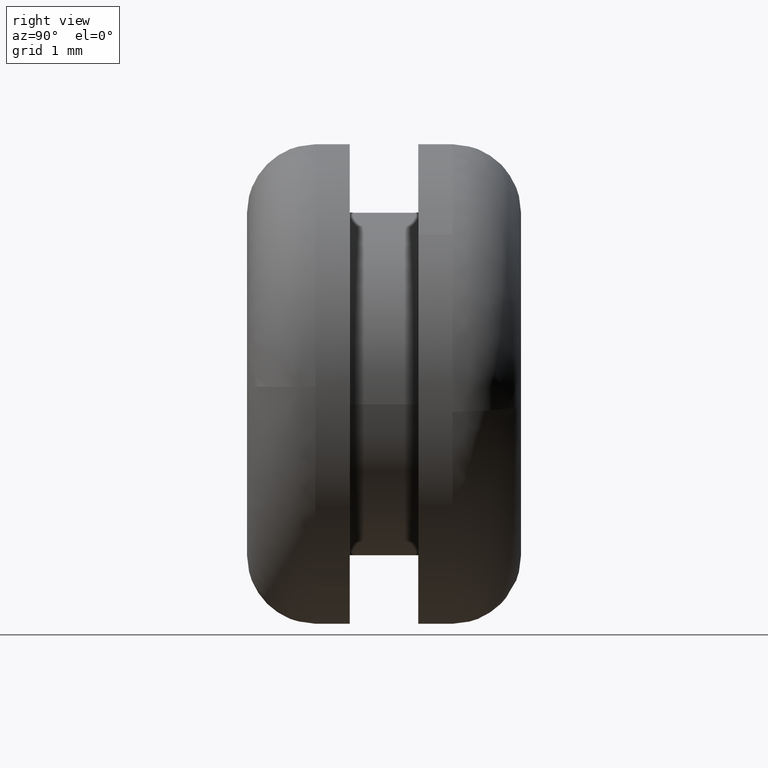
[diagram: clean part render]
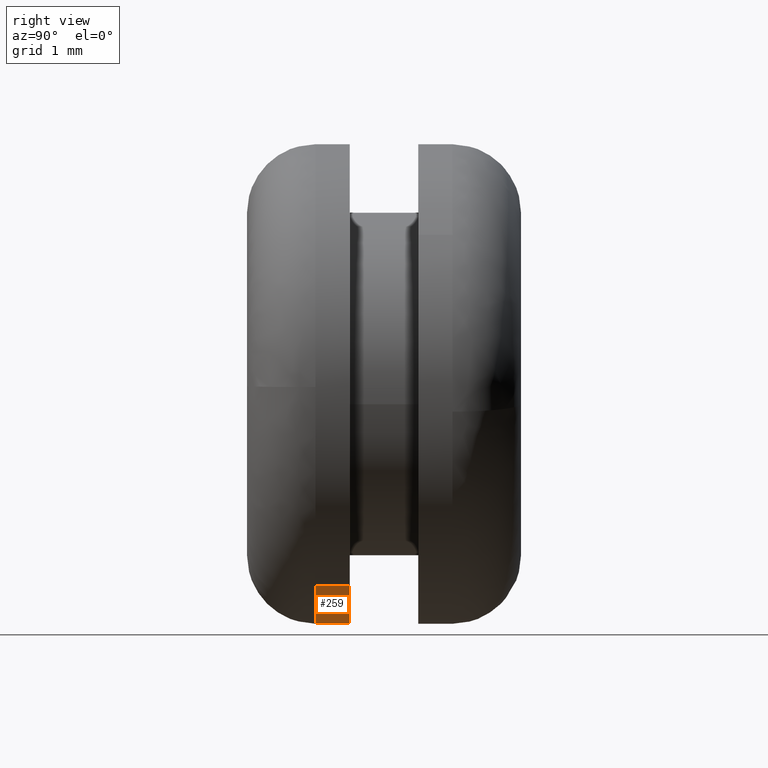
[diagram: same view with one face highlighted and labeled with its STEP entity id]
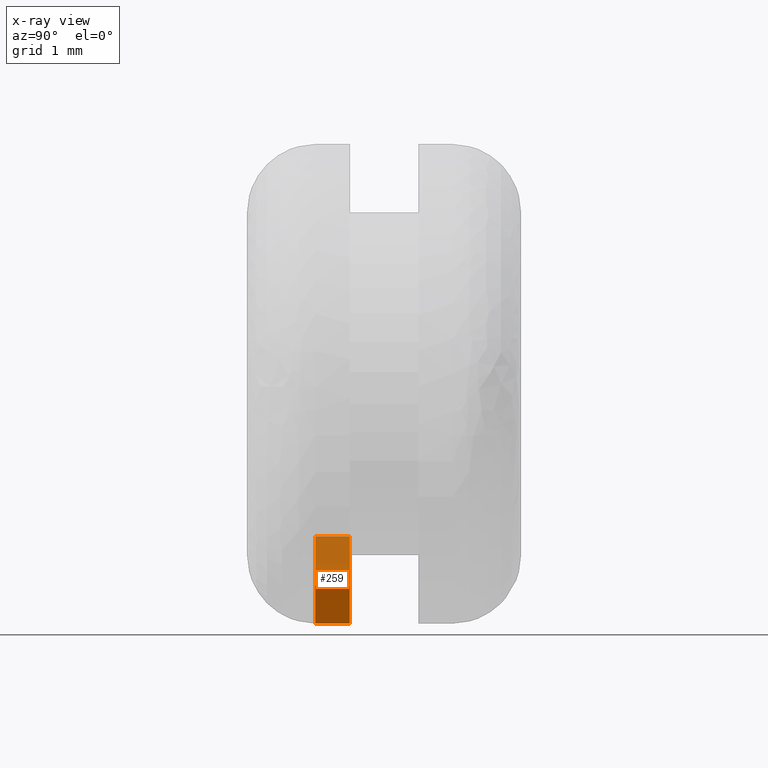
[diagram: x-ray of the same camera — body ghosted, the highlighted face saturated]
A machine part, right view. The second image highlights one B-rep face of the part: STEP entity #259.
The next image is the same camera in x-ray: the body ghosted, the highlighted face saturated — about 56% of this face is hidden behind the body in this view.
In plain terms, the highlighted face is a freeform B-spline surface patch.
Its self-contained STEP definition (entity closure, byte-faithful):
#70=CARTESIAN_POINT('',(1.899550902462815,0.999999999998998,-2.939677936263048));
#71=VERTEX_POINT('',#70);
#87=CARTESIAN_POINT('',(1.899550911907788,1.500000000000000,-2.939677930160084));
#88=VERTEX_POINT('',#87);
#89=CARTESIAN_POINT('',(1.899550911907788,1.500000000000000,-2.939677930160084));
#90=CARTESIAN_POINT('',(1.899550902462815,0.999999999998998,-2.939677936263048));
#91=QUASI_UNIFORM_CURVE('',1,(#89,#90),.UNSPECIFIED.,.F.,.U.);
#92=EDGE_CURVE('',#88,#71,#91,.T.);
#111=CARTESIAN_POINT('',(-2.700686089596179,1.500000000000000,-2.226273713059941));
#112=VERTEX_POINT('',#111);
#128=CARTESIAN_POINT('',(-2.700686205911196,0.999999999999998,-2.226273571958513));
#129=VERTEX_POINT('',#128);
#130=CARTESIAN_POINT('',(-2.700686089596179,1.500000000000000,-2.226273713059941));
#131=CARTESIAN_POINT('',(-2.700686205911196,0.999999999999998,-2.226273571958513));
#132=QUASI_UNIFORM_CURVE('',1,(#130,#131),.UNSPECIFIED.,.F.,.U.);
#133=EDGE_CURVE('',#112,#129,#132,.T.);
#185=CARTESIAN_POINT('',(-2.700686041857019,1.512500000000156,-2.226273770972174));
#186=CARTESIAN_POINT('',(-0.718207725037595,1.512500000000156,-4.631212277785017));
#187=CARTESIAN_POINT('',(1.899551015351208,1.512500000000156,-2.939677863317372));
#188=CARTESIAN_POINT('',(-2.700686041857019,0.987187499993608,-2.226273770972174));
#189=CARTESIAN_POINT('',(-0.718207725037595,0.987187499993608,-4.631212277785017));
#190=CARTESIAN_POINT('',(1.899551015351208,0.987187499993608,-2.939677863317372));
#198=(BOUNDED_SURFACE()B_SPLINE_SURFACE(2,1,((#185,#188),(#186,#189),(#187,#190)),.UNSPECIFIED.,.F.,.F.,.U.)B_SPLINE_SURFACE_WITH_KNOTS((3,3),(2,2),(0.0,5.329218847202446),(0.0,1.0),.UNSPECIFIED.)GEOMETRIC_REPRESENTATION_ITEM()RATIONAL_B_SPLINE_SURFACE(((1.0,1.0),(0.730538238691624,0.730538238691624),(0.956886118190660,0.956886118190660)))REPRESENTATION_ITEM('')SURFACE());
#199=CARTESIAN_POINT('',(0.0,1.0,-3.500000000000000));
#200=VERTEX_POINT('',#199);
#201=CARTESIAN_POINT('',(0.0,1.0,-3.500000000000000));
#202=CARTESIAN_POINT('',(1.032416178883929,1.0,-3.500000000000001));
#203=CARTESIAN_POINT('',(1.899550902462815,0.999999999998998,-2.939677936263049));
#211=(BOUNDED_CURVE()B_SPLINE_CURVE(2,(#201,#202,#203),.UNSPECIFIED.,.F.,.U.)B_SPLINE_CURVE_WITH_KNOTS((3,3),(0.0,0.092934731225705),.UNSPECIFIED.)CURVE()GEOMETRIC_REPRESENTATION_ITEM()RATIONAL_B_SPLINE_CURVE((1.0,0.891120189726961,0.863190106682967))REPRESENTATION_ITEM(''));
#212=EDGE_CURVE('',#200,#71,#211,.T.);
#213=ORIENTED_EDGE('',*,*,#212,.F.);
#214=CARTESIAN_POINT('',(-2.700686205911196,0.999999999999998,-2.226273571958513));
#215=CARTESIAN_POINT('',(-1.650707480983870,1.0,-3.500000000000001));
#216=CARTESIAN_POINT('',(0.0,1.0,-3.500000000000000));
#224=(BOUNDED_CURVE()B_SPLINE_CURVE(2,(#214,#215,#216),.UNSPECIFIED.,.F.,.U.)B_SPLINE_CURVE_WITH_KNOTS((3,3),(0.860504603570303,1.0),.UNSPECIFIED.)CURVE()GEOMETRIC_REPRESENTATION_ITEM()RATIONAL_B_SPLINE_CURVE((0.855522725095084,0.836570977320189,1.0))REPRESENTATION_ITEM(''));
#225=EDGE_CURVE('',#129,#200,#224,.T.);
#226=ORIENTED_EDGE('',*,*,#225,.F.);
#227=ORIENTED_EDGE('',*,*,#133,.F.);
#228=CARTESIAN_POINT('',(0.0,1.500000000000000,-3.500000000000000));
#229=VERTEX_POINT('',#228);
#230=CARTESIAN_POINT('',(-2.700686089596178,1.500000000000000,-2.226273713059940));
#231=CARTESIAN_POINT('',(-1.650707257445918,1.500000000000000,-3.500000000000000));
#232=CARTESIAN_POINT('',(0.0,1.500000000000000,-3.500000000000000));
#240=(BOUNDED_CURVE()B_SPLINE_CURVE(2,(#230,#231,#232),.UNSPECIFIED.,.F.,.U.)B_SPLINE_CURVE_WITH_KNOTS((3,3),(0.860504619373459,1.0),.UNSPECIFIED.)CURVE()GEOMETRIC_REPRESENTATION_ITEM()RATIONAL_B_SPLINE_CURVE((0.855522720801075,0.836570995834738,1.0))REPRESENTATION_ITEM(''));
#241=EDGE_CURVE('',#112,#229,#240,.T.);
#242=ORIENTED_EDGE('',*,*,#241,.T.);
#243=CARTESIAN_POINT('',(0.0,1.500000000000000,-3.500000000000000));
#244=CARTESIAN_POINT('',(1.032416191107638,1.500000000000000,-3.500000000000000));
#245=CARTESIAN_POINT('',(1.899550911907787,1.500000000000000,-2.939677930160083));
#253=(BOUNDED_CURVE()B_SPLINE_CURVE(2,(#243,#244,#245),.UNSPECIFIED.,.F.,.U.)B_SPLINE_CURVE_WITH_KNOTS((3,3),(0.0,0.092934732206239),.UNSPECIFIED.)CURVE()GEOMETRIC_REPRESENTATION_ITEM()RATIONAL_B_SPLINE_CURVE((1.0,0.891120188578194,0.863190106093599))REPRESENTATION_ITEM(''));
#254=EDGE_CURVE('',#229,#88,#253,.T.);
#255=ORIENTED_EDGE('',*,*,#254,.T.);
#256=ORIENTED_EDGE('',*,*,#92,.T.);
#257=EDGE_LOOP('',(#213,#226,#227,#242,#255,#256));
#258=FACE_OUTER_BOUND('',#257,.T.);
#259=ADVANCED_FACE('',(#258),#198,.T.);